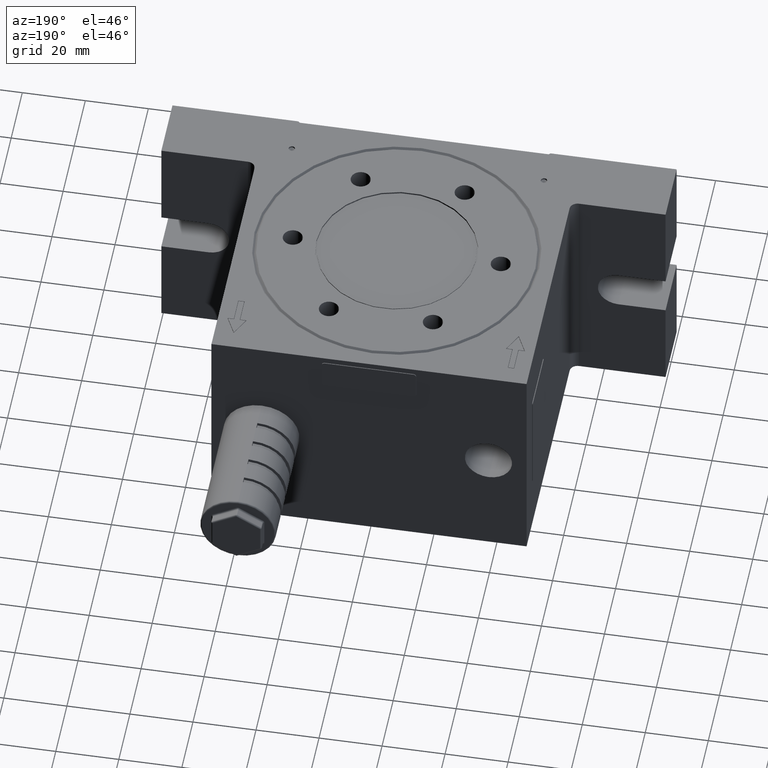
[diagram: clean part render]
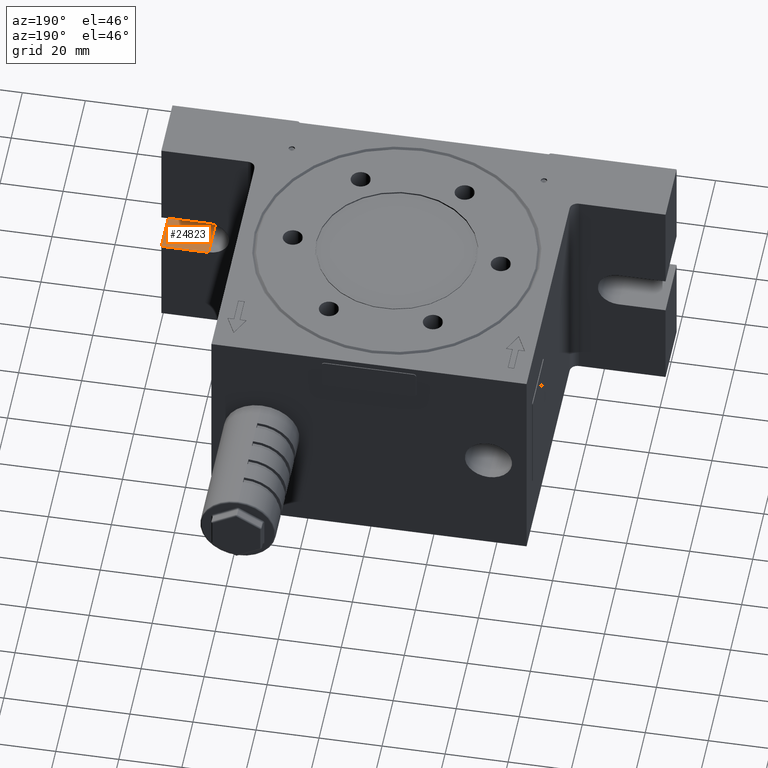
[diagram: same view with one face highlighted and labeled with its STEP entity id]
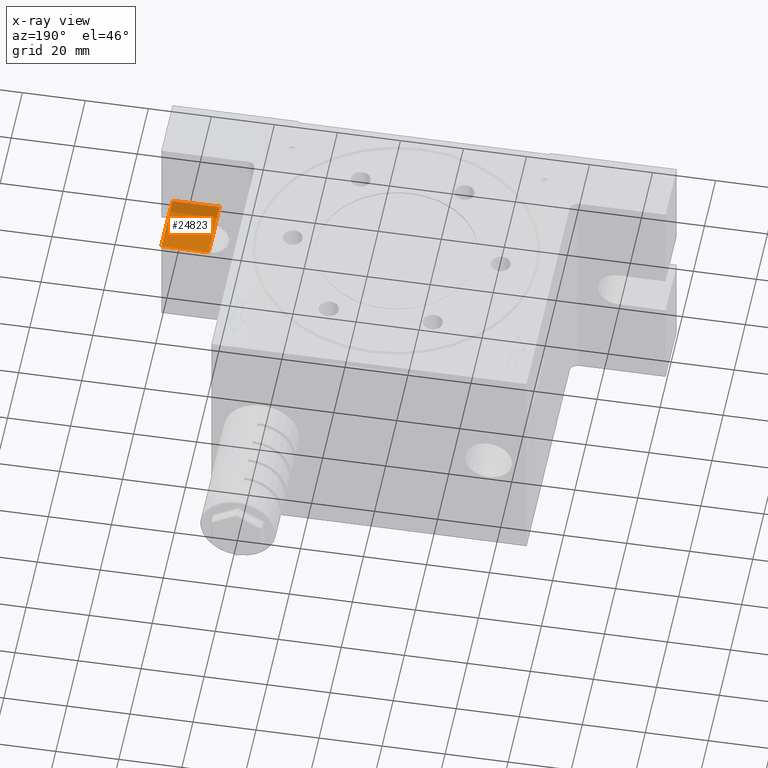
[diagram: x-ray of the same camera — body ghosted, the highlighted face saturated]
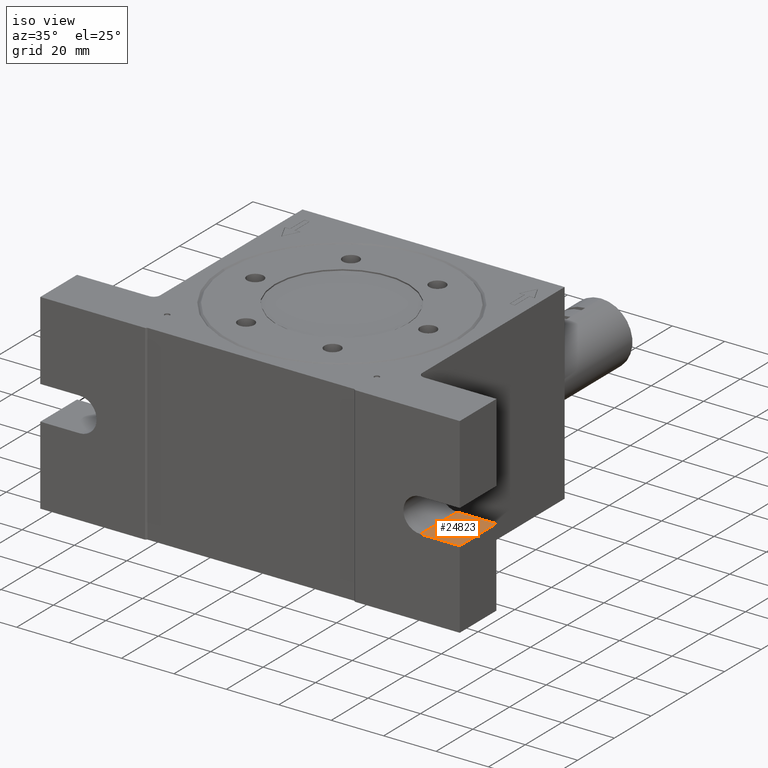
[diagram: same view with one face highlighted and labeled with its STEP entity id]
A machine part, auxiliary view. The second image highlights one B-rep face of the part: STEP entity #24823.
The next image is the same camera in x-ray: the body ghosted, the highlighted face saturated — about 24% of this face is hidden behind the body in this view.
A second angle (iso view) of the same face is appended — the face is thin or edge-on in the first view.
In plain terms, the highlighted planar face has unit normal (-0, 0, -1).
Its self-contained STEP definition (entity closure, byte-faithful):
#418 = LINE ( 'NONE', #1825, #3715 ) ;
#1451 = AXIS2_PLACEMENT_3D ( 'NONE', #6947, #22479, #5478 ) ;
#1825 = CARTESIAN_POINT ( 'NONE',  ( 80.00000000000000000, -50.00000000000000000, -6.500000000000000000 ) ) ;
#1967 = VECTOR ( 'NONE', #6937, 1000.000000000000000 ) ;
#2119 = ORIENTED_EDGE ( 'NONE', *, *, #9150, .F. ) ;
#3351 = CARTESIAN_POINT ( 'NONE',  ( 80.00000000000000000, -50.00000000000000000, -6.500000000000000000 ) ) ;
#3715 = VECTOR ( 'NONE', #19238, 1000.000000000000000 ) ;
#4302 = VECTOR ( 'NONE', #8107, 1000.000000000000000 ) ;
#4467 = DIRECTION ( 'NONE',  ( 0.0000000000000000000, 1.000000000000000000, 0.0000000000000000000 ) ) ;
#4967 = ORIENTED_EDGE ( 'NONE', *, *, #16688, .T. ) ;
#5328 = VERTEX_POINT ( 'NONE', #9253 ) ;
#5478 = DIRECTION ( 'NONE',  ( -1.000000000000000000, 0.0000000000000000000, 5.204170427930419300E-016 ) ) ;
#5871 = VERTEX_POINT ( 'NONE', #21966 ) ;
#5974 = VERTEX_POINT ( 'NONE', #3351 ) ;
#6374 = ORIENTED_EDGE ( 'NONE', *, *, #11208, .T. ) ;
#6380 = CARTESIAN_POINT ( 'NONE',  ( 80.00000000000000000, -30.00000000000000000, -6.500000000000000000 ) ) ;
#6856 = LINE ( 'NONE', #16490, #1967 ) ;
#6937 = DIRECTION ( 'NONE',  ( -1.000000000000000000, 0.0000000000000000000, 5.204170427930419300E-016 ) ) ;
#6947 = CARTESIAN_POINT ( 'NONE',  ( 80.00000000000000000, -50.00000000000000000, -6.500000000000000000 ) ) ;
#7111 = PLANE ( 'NONE',  #1451 ) ;
#8107 = DIRECTION ( 'NONE',  ( -1.000000000000000000, 0.0000000000000000000, 5.204170427930419300E-016 ) ) ;
#9150 = EDGE_CURVE ( 'NONE', #5328, #5871, #23560, .T. ) ;
#9253 = CARTESIAN_POINT ( 'NONE',  ( 65.00000000000000000, -50.00000000000000000, -6.500000000000000000 ) ) ;
#9989 = CARTESIAN_POINT ( 'NONE',  ( 80.00000000000000000, -50.00000000000000000, -6.500000000000000000 ) ) ;
#10815 = EDGE_LOOP ( 'NONE', ( #6374, #2119, #19741, #4967 ) ) ;
#11208 = EDGE_CURVE ( 'NONE', #19655, #5871, #6856, .T. ) ;
#12100 = FACE_OUTER_BOUND ( 'NONE', #10815, .T. ) ;
#13299 = VECTOR ( 'NONE', #4467, 1000.000000000000000 ) ;
#16083 = CARTESIAN_POINT ( 'NONE',  ( 65.00000000000000000, -50.00000000000000000, -6.500000000000000000 ) ) ;
#16490 = CARTESIAN_POINT ( 'NONE',  ( 80.00000000000000000, -30.00000000000000000, -6.500000000000000000 ) ) ;
#16688 = EDGE_CURVE ( 'NONE', #5974, #19655, #418, .T. ) ;
#19238 = DIRECTION ( 'NONE',  ( 0.0000000000000000000, 1.000000000000000000, 0.0000000000000000000 ) ) ;
#19655 = VERTEX_POINT ( 'NONE', #6380 ) ;
#19741 = ORIENTED_EDGE ( 'NONE', *, *, #23730, .F. ) ;
#20336 = LINE ( 'NONE', #9989, #4302 ) ;
#21966 = CARTESIAN_POINT ( 'NONE',  ( 65.00000000000000000, -30.00000000000000000, -6.500000000000000000 ) ) ;
#22479 = DIRECTION ( 'NONE',  ( -5.204170427930419300E-016, 0.0000000000000000000, -1.000000000000000000 ) ) ;
#23560 = LINE ( 'NONE', #16083, #13299 ) ;
#23730 = EDGE_CURVE ( 'NONE', #5974, #5328, #20336, .T. ) ;
#24823 = ADVANCED_FACE ( 'NONE', ( #12100 ), #7111, .F. ) ;